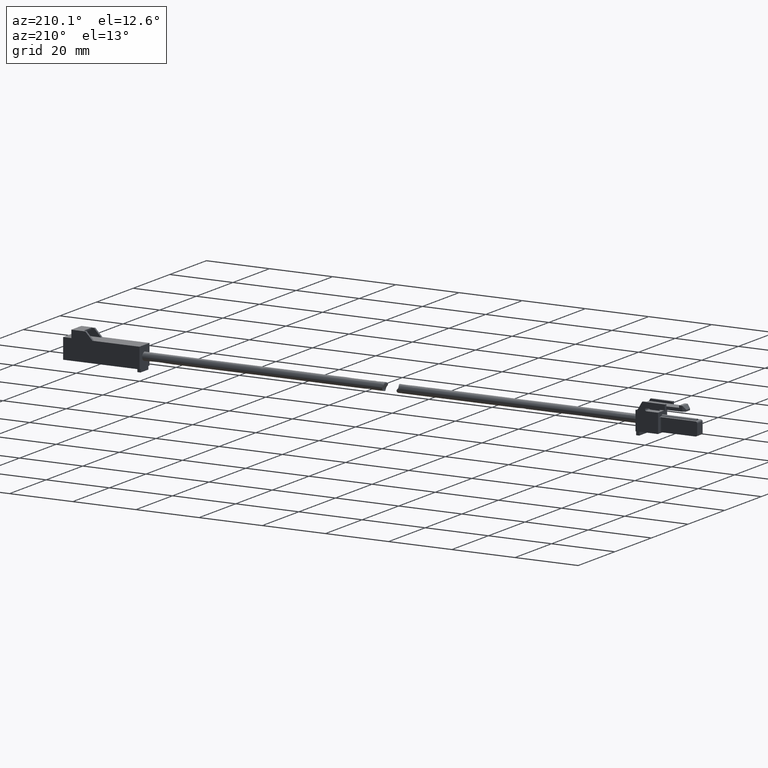
[diagram: clean part render]
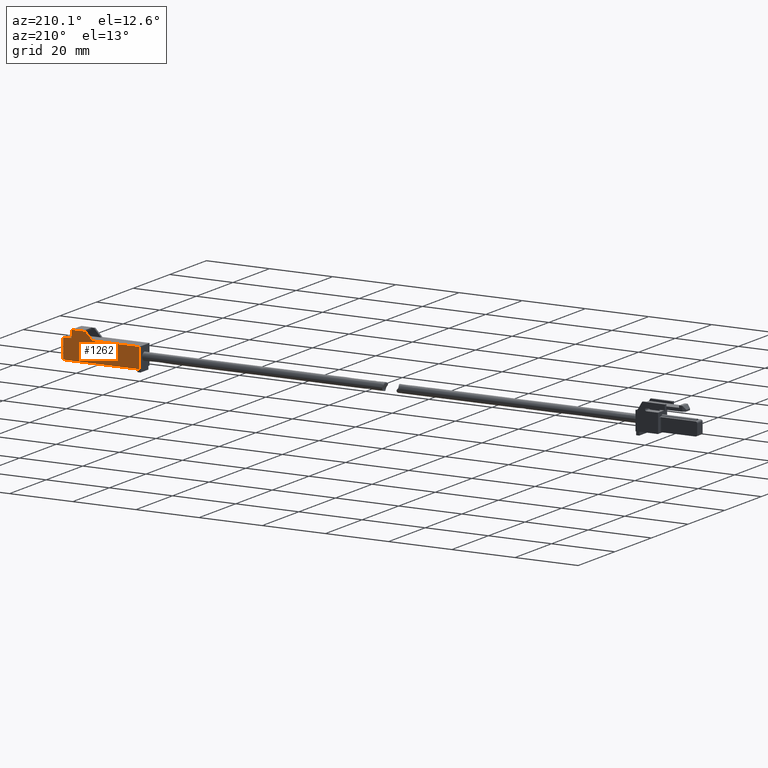
[diagram: same view with one face highlighted and labeled with its STEP entity id]
A machine part, auxiliary view. The second image highlights one B-rep face of the part: STEP entity #1262.
In plain terms, the highlighted face is a freeform B-spline surface patch.
Its self-contained STEP definition (entity closure, byte-faithful):
#885=CARTESIAN_POINT('',(102.616842711578000,2.741321472612300,-3.177630938473330));
#886=VERTEX_POINT('',#885);
#892=CARTESIAN_POINT('',(102.616842711578000,2.741321472612300,3.177630938473670));
#893=VERTEX_POINT('',#892);
#894=CARTESIAN_POINT('',(102.616842711578000,2.741321472612300,-3.177630938473330));
#895=CARTESIAN_POINT('',(102.616842711578000,2.741321472612300,3.177630938473670));
#896=QUASI_UNIFORM_CURVE('',1,(#894,#895),.UNSPECIFIED.,.F.,.U.);
#897=EDGE_CURVE('',#886,#893,#896,.T.);
#1207=CARTESIAN_POINT('',(77.234575784702315,2.741321472612325,5.981237307048186));
#1208=CARTESIAN_POINT('',(103.824371514804400,2.741321472612325,5.981237307048186));
#1209=CARTESIAN_POINT('',(77.234575784702315,2.741321472612325,-3.613352351508846));
#1210=CARTESIAN_POINT('',(103.824371514804400,2.741321472612325,-3.613352351508846));
#1211=B_SPLINE_SURFACE_WITH_KNOTS('',1,1,((#1207,#1209),(#1208,#1210)),.UNSPECIFIED.,.F.,.F.,.U.,(2,2),(2,2),(0.0,26.589795730102100),(0.0,9.594589658557032),.UNSPECIFIED.);
#1212=ORIENTED_EDGE('',*,*,#897,.F.);
#1213=CARTESIAN_POINT('',(78.442103939511711,2.741321472612300,-3.177630938473330));
#1214=VERTEX_POINT('',#1213);
#1215=CARTESIAN_POINT('',(78.442103939511711,2.741321472612300,-3.177630938473330));
#1216=CARTESIAN_POINT('',(102.616842711578000,2.741321472612300,-3.177630938473330));
#1217=QUASI_UNIFORM_CURVE('',1,(#1215,#1216),.UNSPECIFIED.,.F.,.U.);
#1218=EDGE_CURVE('',#1214,#886,#1217,.T.);
#1219=ORIENTED_EDGE('',*,*,#1218,.F.);
#1220=CARTESIAN_POINT('',(78.442103939511711,2.741321472612300,3.177630938473670));
#1221=VERTEX_POINT('',#1220);
#1222=CARTESIAN_POINT('',(78.442103939511711,2.741321472612300,3.177630938473670));
#1223=CARTESIAN_POINT('',(78.442103939511711,2.741321472612300,-3.177630938473330));
#1224=QUASI_UNIFORM_CURVE('',1,(#1222,#1223),.UNSPECIFIED.,.F.,.U.);
#1225=EDGE_CURVE('',#1221,#1214,#1224,.T.);
#1226=ORIENTED_EDGE('',*,*,#1225,.F.);
#1227=CARTESIAN_POINT('',(93.333921501817102,2.741321472612300,3.177630938473670));
#1228=VERTEX_POINT('',#1227);
#1229=CARTESIAN_POINT('',(93.333921501817102,2.741321472612300,3.177630938473670));
#1230=CARTESIAN_POINT('',(78.442103939511711,2.741321472612300,3.177630938473670));
#1231=QUASI_UNIFORM_CURVE('',1,(#1229,#1230),.UNSPECIFIED.,.F.,.U.);
#1232=EDGE_CURVE('',#1228,#1221,#1231,.T.);
#1233=ORIENTED_EDGE('',*,*,#1232,.F.);
#1234=CARTESIAN_POINT('',(95.576060325804406,2.741321472612300,5.545516127985710));
#1235=VERTEX_POINT('',#1234);
#1236=CARTESIAN_POINT('',(95.576060325804406,2.741321472612300,5.545516127985710));
#1237=CARTESIAN_POINT('',(93.333921501817102,2.741321472612300,3.177630938473670));
#1238=QUASI_UNIFORM_CURVE('',1,(#1236,#1237),.UNSPECIFIED.,.F.,.U.);
#1239=EDGE_CURVE('',#1235,#1228,#1238,.T.);
#1240=ORIENTED_EDGE('',*,*,#1239,.F.);
#1241=CARTESIAN_POINT('',(100.000507041796200,2.741321472612300,5.545516127985710));
#1242=VERTEX_POINT('',#1241);
#1243=CARTESIAN_POINT('',(100.000507041796200,2.741321472612300,5.545516127985710));
#1244=CARTESIAN_POINT('',(95.576060325804406,2.741321472612300,5.545516127985710));
#1245=QUASI_UNIFORM_CURVE('',1,(#1243,#1244),.UNSPECIFIED.,.F.,.U.);
#1246=EDGE_CURVE('',#1242,#1235,#1245,.T.);
#1247=ORIENTED_EDGE('',*,*,#1246,.F.);
#1248=CARTESIAN_POINT('',(100.000507041796200,2.741321472612300,3.177630938473670));
#1249=VERTEX_POINT('',#1248);
#1250=CARTESIAN_POINT('',(100.000507041796200,2.741321472612300,3.177630938473670));
#1251=CARTESIAN_POINT('',(100.000507041796200,2.741321472612300,5.545516127985710));
#1252=QUASI_UNIFORM_CURVE('',1,(#1250,#1251),.UNSPECIFIED.,.F.,.U.);
#1253=EDGE_CURVE('',#1249,#1242,#1252,.T.);
#1254=ORIENTED_EDGE('',*,*,#1253,.F.);
#1255=CARTESIAN_POINT('',(102.616842711578000,2.741321472612300,3.177630938473670));
#1256=CARTESIAN_POINT('',(100.000507041796200,2.741321472612300,3.177630938473670));
#1257=QUASI_UNIFORM_CURVE('',1,(#1255,#1256),.UNSPECIFIED.,.F.,.U.);
#1258=EDGE_CURVE('',#893,#1249,#1257,.T.);
#1259=ORIENTED_EDGE('',*,*,#1258,.F.);
#1260=EDGE_LOOP('',(#1212,#1219,#1226,#1233,#1240,#1247,#1254,#1259));
#1261=FACE_OUTER_BOUND('',#1260,.T.);
#1262=ADVANCED_FACE('',(#1261),#1211,.T.);